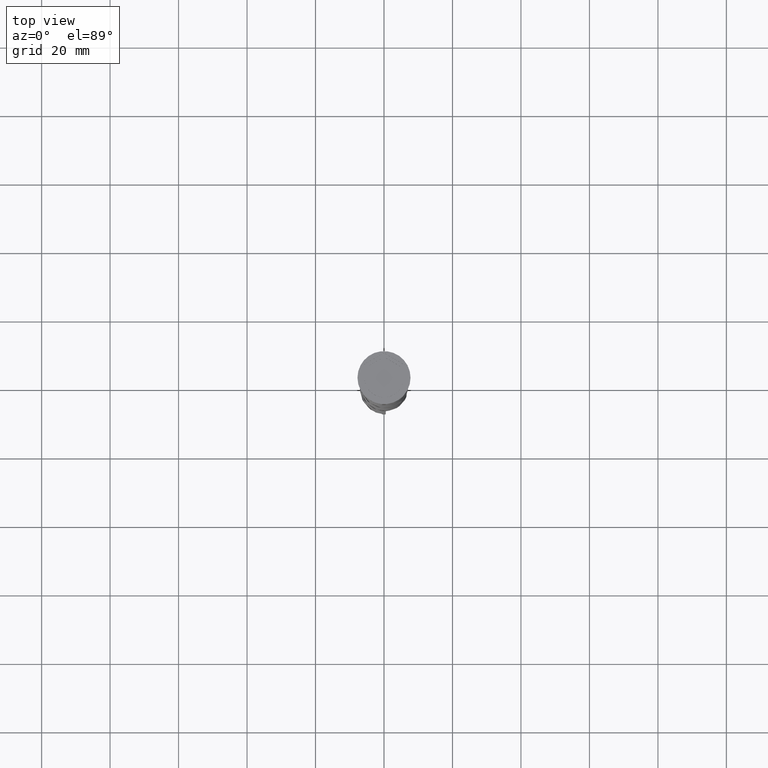
[diagram: clean part render]
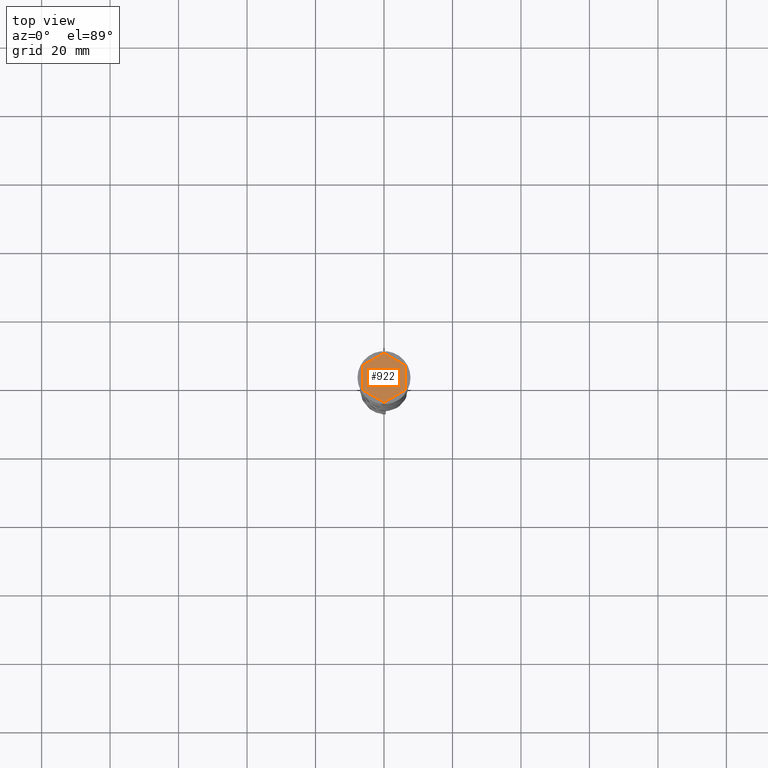
[diagram: same view with one face highlighted and labeled with its STEP entity id]
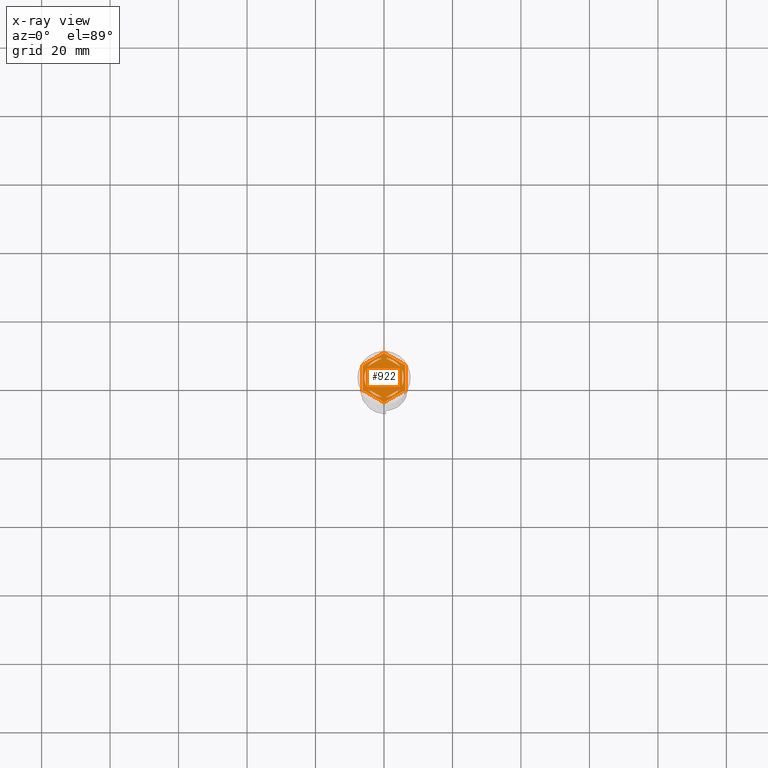
[diagram: x-ray of the same camera — body ghosted, the highlighted face saturated]
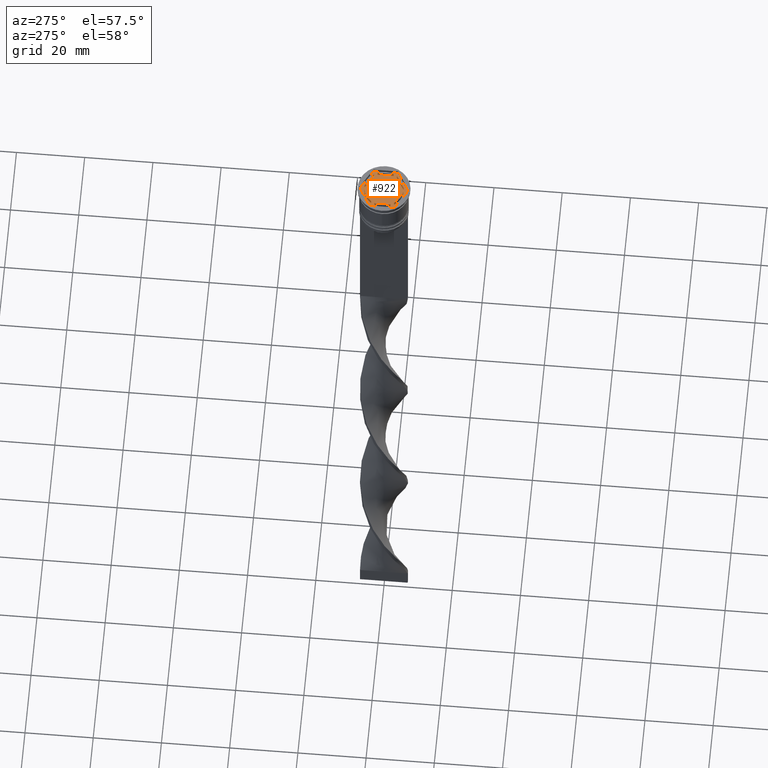
[diagram: same view with one face highlighted and labeled with its STEP entity id]
A machine part, top view. The second image highlights one B-rep face of the part: STEP entity #922.
The next image is the same camera in x-ray: the body ghosted, the highlighted face saturated — about 0% of this face is hidden behind the body in this view.
A second angle (auxiliary view) of the same face is appended — the face is thin or edge-on in the first view.
In plain terms, the highlighted planar face has unit normal (0, 0, 1).
Its self-contained STEP definition (entity closure, byte-faithful):
#20 = CARTESIAN_POINT ( 'NONE',  ( 0.5939903988410126789, 5.719237309824160675, -1.000000000000000888 ) ) ;
#25 = EDGE_CURVE ( 'NONE', #1336, #2968, #3800, .T. ) ;
#69 = CIRCLE ( 'NONE', #2590, 5.750000000000000000 ) ;
#78 = EDGE_CURVE ( 'NONE', #2641, #1229, #1830, .T. ) ;
#111 = CARTESIAN_POINT ( 'NONE',  ( -6.249999999999999112, -3.608439182435161374, -1.000000000000000000 ) ) ;
#112 = ORIENTED_EDGE ( 'NONE', *, *, #3701, .F. ) ;
#127 = EDGE_LOOP ( 'NONE', ( #1533, #2231 ) ) ;
#134 = EDGE_LOOP ( 'NONE', ( #112, #1873 ) ) ;
#147 = EDGE_CURVE ( 'NONE', #1727, #3018, #176, .T. ) ;
#162 = CARTESIAN_POINT ( 'NONE',  ( 4.656009601158988431, 3.374029429912448919, -1.000000000000000888 ) ) ;
#171 = EDGE_CURVE ( 'NONE', #980, #2386, #1348, .T. ) ;
#175 = VERTEX_POINT ( 'NONE', #2191 ) ;
#176 = LINE ( 'NONE', #1652, #674 ) ;
#192 = DIRECTION ( 'NONE',  ( 0.000000000000000000, 1.000000000000000000, 0.000000000000000000 ) ) ;
#293 = ORIENTED_EDGE ( 'NONE', *, *, #333, .F. ) ;
#301 = DIRECTION ( 'NONE',  ( 0.8660254037844385966, -0.4999999999999998890, 0.000000000000000000 ) ) ;
#303 = VERTEX_POINT ( 'NONE', #1387 ) ;
#313 = CARTESIAN_POINT ( 'NONE',  ( 0.000000000000000000, 0.000000000000000000, -1.000000000000000000 ) ) ;
#333 = EDGE_CURVE ( 'NONE', #3486, #3435, #2598, .T. ) ;
#376 = ORIENTED_EDGE ( 'NONE', *, *, #3014, .F. ) ;
#450 = CARTESIAN_POINT ( 'NONE',  ( -0.5939903988410105695, 5.719237309824159787, -1.000000000000000888 ) ) ;
#465 = DIRECTION ( 'NONE',  ( 0.8660254037844387076, -0.4999999999999998335, 0.000000000000000000 ) ) ;
#468 = DIRECTION ( 'NONE',  ( 1.000000000000000000, 0.000000000000000000, 0.000000000000000000 ) ) ;
#471 = EDGE_LOOP ( 'NONE', ( #2202, #3445 ) ) ;
#483 = CARTESIAN_POINT ( 'NONE',  ( 5.249999999999997335, 3.031088913245537864, -1.000000000000000888 ) ) ;
#522 = ORIENTED_EDGE ( 'NONE', *, *, #25, .F. ) ;
#545 = CARTESIAN_POINT ( 'NONE',  ( 6.249999999999998224, -3.608439182435161374, -1.000000000000000000 ) ) ;
#589 = EDGE_CURVE ( 'NONE', #175, #3705, #1475, .T. ) ;
#600 = CARTESIAN_POINT ( 'NONE',  ( -6.249999999999999112, 3.608439182435158710, -1.000000000000000000 ) ) ;
#608 = CARTESIAN_POINT ( 'NONE',  ( -6.249999999999999112, -3.608439182435161374, -1.000000000000000000 ) ) ;
#624 = CARTESIAN_POINT ( 'NONE',  ( 6.249999999999998224, -3.608439182435161374, -1.000000000000000000 ) ) ;
#639 = EDGE_CURVE ( 'NONE', #1229, #2641, #2270, .T. ) ;
#661 = DIRECTION ( 'NONE',  ( 1.000000000000000000, 0.000000000000000000, 0.000000000000000000 ) ) ;
#674 = VECTOR ( 'NONE', #776, 1000.000000000000000 ) ;
#706 = DIRECTION ( 'NONE',  ( 0.000000000000000000, 0.000000000000000000, 1.000000000000000000 ) ) ;
#730 = AXIS2_PLACEMENT_3D ( 'NONE', #313, #2075, #661 ) ;
#739 = VECTOR ( 'NONE', #2910, 1000.000000000000000 ) ;
#776 = DIRECTION ( 'NONE',  ( -0.8660254037844388186, 0.4999999999999997224, 0.000000000000000000 ) ) ;
#799 = VECTOR ( 'NONE', #3553, 1000.000000000000000 ) ;
#802 = FACE_BOUND ( 'NONE', #127, .T. ) ;
#806 = VECTOR ( 'NONE', #1079, 1000.000000000000114 ) ;
#810 = EDGE_CURVE ( 'NONE', #303, #3382, #861, .T. ) ;
#838 = CARTESIAN_POINT ( 'NONE',  ( 0.000000000000000000, 0.000000000000000000, -1.000000000000000000 ) ) ;
#840 = FACE_BOUND ( 'NONE', #134, .T. ) ;
#854 = LINE ( 'NONE', #3777, #2832 ) ;
#861 = CIRCLE ( 'NONE', #2077, 5.750000000000000000 ) ;
#891 = LINE ( 'NONE', #624, #739 ) ;
#916 = DIRECTION ( 'NONE',  ( 1.000000000000000000, 0.000000000000000000, 0.000000000000000000 ) ) ;
#922 = ADVANCED_FACE ( 'NONE', ( #802, #1091, #840, #2549, #2314, #2257, #2004 ), #3182, .T. ) ;
#980 = VERTEX_POINT ( 'NONE', #2605 ) ;
#1002 = EDGE_LOOP ( 'NONE', ( #2669, #376, #1329 ) ) ;
#1066 = EDGE_CURVE ( 'NONE', #3705, #1727, #891, .T. ) ;
#1076 = CARTESIAN_POINT ( 'NONE',  ( -0.5939903988410105695, -5.719237309824160675, -1.000000000000000888 ) ) ;
#1079 = DIRECTION ( 'NONE',  ( -0.8660254037844387076, -0.4999999999999997224, 0.000000000000000000 ) ) ;
#1091 = FACE_BOUND ( 'NONE', #3513, .T. ) ;
#1113 = CIRCLE ( 'NONE', #2216, 5.750000000000000000 ) ;
#1125 = VECTOR ( 'NONE', #301, 1000.000000000000227 ) ;
#1133 = ORIENTED_EDGE ( 'NONE', *, *, #2933, .T. ) ;
#1211 = DIRECTION ( 'NONE',  ( 0.000000000000000000, 0.000000000000000000, 1.000000000000000000 ) ) ;
#1229 = VERTEX_POINT ( 'NONE', #162 ) ;
#1267 = CARTESIAN_POINT ( 'NONE',  ( -5.249999999999999112, -2.345207879911715310, -1.000000000000000888 ) ) ;
#1312 = DIRECTION ( 'NONE',  ( 0.8660254037844387076, 0.4999999999999999445, -0.000000000000000000 ) ) ;
#1329 = ORIENTED_EDGE ( 'NONE', *, *, #810, .F. ) ;
#1336 = VERTEX_POINT ( 'NONE', #3062 ) ;
#1345 = CARTESIAN_POINT ( 'NONE',  ( 0.000000000000000000, 0.000000000000000000, -1.000000000000000000 ) ) ;
#1348 = LINE ( 'NONE', #2519, #3681 ) ;
#1368 = CARTESIAN_POINT ( 'NONE',  ( 5.249999999999997335, 2.345207879911718862, -1.000000000000000888 ) ) ;
#1382 = VERTEX_POINT ( 'NONE', #1620 ) ;
#1387 = CARTESIAN_POINT ( 'NONE',  ( -5.750000000000000000, 0.000000000000000000, -1.000000000000000000 ) ) ;
#1424 = ORIENTED_EDGE ( 'NONE', *, *, #2939, .F. ) ;
#1462 = DIRECTION ( 'NONE',  ( 0.000000000000000000, 0.000000000000000000, 1.000000000000000000 ) ) ;
#1475 = LINE ( 'NONE', #2666, #799 ) ;
#1533 = ORIENTED_EDGE ( 'NONE', *, *, #639, .F. ) ;
#1596 = CARTESIAN_POINT ( 'NONE',  ( 0.000000000000000000, 0.000000000000000000, -1.000000000000000000 ) ) ;
#1610 = CARTESIAN_POINT ( 'NONE',  ( -4.656009601158991096, -3.374029429912444034, -1.000000000000000888 ) ) ;
#1620 = CARTESIAN_POINT ( 'NONE',  ( 0.5939903988410074609, -5.719237309824160675, -1.000000000000000888 ) ) ;
#1650 = LINE ( 'NONE', #2823, #2092 ) ;
#1651 = VERTEX_POINT ( 'NONE', #3338 ) ;
#1652 = CARTESIAN_POINT ( 'NONE',  ( 6.250000000000000000, 3.608439182435161374, -1.000000000000000000 ) ) ;
#1687 = DIRECTION ( 'NONE',  ( 1.000000000000000000, 0.000000000000000000, 0.000000000000000000 ) ) ;
#1727 = VERTEX_POINT ( 'NONE', #2496 ) ;
#1739 = EDGE_LOOP ( 'NONE', ( #1424, #293 ) ) ;
#1742 = EDGE_CURVE ( 'NONE', #1651, #1382, #2264, .T. ) ;
#1786 = AXIS2_PLACEMENT_3D ( 'NONE', #1345, #1978, #1687 ) ;
#1830 = LINE ( 'NONE', #483, #2014 ) ;
#1863 = EDGE_CURVE ( 'NONE', #2386, #980, #2766, .T. ) ;
#1873 = ORIENTED_EDGE ( 'NONE', *, *, #1742, .F. ) ;
#1884 = ORIENTED_EDGE ( 'NONE', *, *, #3300, .T. ) ;
#1961 = VECTOR ( 'NONE', #1996, 1000.000000000000114 ) ;
#1970 = DIRECTION ( 'NONE',  ( 1.000000000000000000, 0.000000000000000000, -0.000000000000000000 ) ) ;
#1978 = DIRECTION ( 'NONE',  ( 0.000000000000000000, 0.000000000000000000, 1.000000000000000000 ) ) ;
#1991 = VERTEX_POINT ( 'NONE', #3784 ) ;
#1996 = DIRECTION ( 'NONE',  ( -0.8660254037844384856, 0.5000000000000002220, 0.000000000000000000 ) ) ;
#2004 = FACE_OUTER_BOUND ( 'NONE', #3172, .T. ) ;
#2014 = VECTOR ( 'NONE', #465, 1000.000000000000114 ) ;
#2048 = CARTESIAN_POINT ( 'NONE',  ( 0.000000000000000000, 0.000000000000000000, -1.000000000000000000 ) ) ;
#2051 = CARTESIAN_POINT ( 'NONE',  ( -5.249999999999999112, -3.031088913245534311, -1.000000000000000888 ) ) ;
#2075 = DIRECTION ( 'NONE',  ( 0.000000000000000000, 0.000000000000000000, 1.000000000000000000 ) ) ;
#2077 = AXIS2_PLACEMENT_3D ( 'NONE', #2741, #706, #3684 ) ;
#2092 = VECTOR ( 'NONE', #192, 1000.000000000000000 ) ;
#2191 = CARTESIAN_POINT ( 'NONE',  ( 8.729740977282959667E-16, -7.216878364870321860, -1.000000000000000000 ) ) ;
#2202 = ORIENTED_EDGE ( 'NONE', *, *, #1863, .F. ) ;
#2216 = AXIS2_PLACEMENT_3D ( 'NONE', #838, #1462, #3504 ) ;
#2231 = ORIENTED_EDGE ( 'NONE', *, *, #78, .F. ) ;
#2257 = FACE_BOUND ( 'NONE', #471, .T. ) ;
#2264 = LINE ( 'NONE', #3443, #806 ) ;
#2266 = AXIS2_PLACEMENT_3D ( 'NONE', #3247, #1211, #3611 ) ;
#2270 = CIRCLE ( 'NONE', #2266, 5.750000000000000000 ) ;
#2277 = VERTEX_POINT ( 'NONE', #600 ) ;
#2304 = LINE ( 'NONE', #3171, #2954 ) ;
#2314 = FACE_BOUND ( 'NONE', #1002, .T. ) ;
#2386 = VERTEX_POINT ( 'NONE', #450 ) ;
#2388 = AXIS2_PLACEMENT_3D ( 'NONE', #3436, #2872, #1970 ) ;
#2444 = EDGE_CURVE ( 'NONE', #1991, #303, #69, .T. ) ;
#2454 = DIRECTION ( 'NONE',  ( -0.8660254037844385966, -0.5000000000000001110, 0.000000000000000000 ) ) ;
#2496 = CARTESIAN_POINT ( 'NONE',  ( 6.250000000000000000, 3.608439182435161374, -1.000000000000000000 ) ) ;
#2519 = CARTESIAN_POINT ( 'NONE',  ( 8.673617379884035472E-16, 6.062177826491070398, -1.000000000000000888 ) ) ;
#2549 = FACE_BOUND ( 'NONE', #1739, .T. ) ;
#2590 = AXIS2_PLACEMENT_3D ( 'NONE', #1596, #2774, #468 ) ;
#2598 = LINE ( 'NONE', #2051, #1961 ) ;
#2605 = CARTESIAN_POINT ( 'NONE',  ( -4.656009601158989319, 3.374029429912446698, -1.000000000000000888 ) ) ;
#2641 = VERTEX_POINT ( 'NONE', #20 ) ;
#2666 = CARTESIAN_POINT ( 'NONE',  ( 8.729740977282959667E-16, -7.216878364870321860, -1.000000000000000000 ) ) ;
#2669 = ORIENTED_EDGE ( 'NONE', *, *, #2444, .F. ) ;
#2698 = ORIENTED_EDGE ( 'NONE', *, *, #3671, .F. ) ;
#2741 = CARTESIAN_POINT ( 'NONE',  ( 0.000000000000000000, 0.000000000000000000, -1.000000000000000000 ) ) ;
#2766 = CIRCLE ( 'NONE', #3256, 5.750000000000000000 ) ;
#2774 = DIRECTION ( 'NONE',  ( 0.000000000000000000, 0.000000000000000000, 1.000000000000000000 ) ) ;
#2784 = CARTESIAN_POINT ( 'NONE',  ( 0.000000000000000000, 7.216878364870320084, -1.000000000000000000 ) ) ;
#2823 = CARTESIAN_POINT ( 'NONE',  ( -5.249999999999999112, 3.031088913245535199, -1.000000000000000888 ) ) ;
#2832 = VECTOR ( 'NONE', #3759, 1000.000000000000000 ) ;
#2872 = DIRECTION ( 'NONE',  ( 0.000000000000000000, 0.000000000000000000, 1.000000000000000000 ) ) ;
#2910 = DIRECTION ( 'NONE',  ( 2.403703357979454647E-16, 1.000000000000000000, 0.000000000000000000 ) ) ;
#2932 = LINE ( 'NONE', #608, #1125 ) ;
#2933 = EDGE_CURVE ( 'NONE', #2277, #3286, #2304, .T. ) ;
#2939 = EDGE_CURVE ( 'NONE', #3435, #3486, #3270, .T. ) ;
#2954 = VECTOR ( 'NONE', #3461, 1000.000000000000000 ) ;
#2968 = VERTEX_POINT ( 'NONE', #1368 ) ;
#2996 = ORIENTED_EDGE ( 'NONE', *, *, #1066, .T. ) ;
#3014 = EDGE_CURVE ( 'NONE', #3382, #1991, #1650, .T. ) ;
#3018 = VERTEX_POINT ( 'NONE', #3156 ) ;
#3062 = CARTESIAN_POINT ( 'NONE',  ( 5.249999999999997335, -2.345207879911720639, -1.000000000000000888 ) ) ;
#3090 = ORIENTED_EDGE ( 'NONE', *, *, #3223, .T. ) ;
#3156 = CARTESIAN_POINT ( 'NONE',  ( 0.000000000000000000, 7.216878364870320084, -1.000000000000000000 ) ) ;
#3171 = CARTESIAN_POINT ( 'NONE',  ( -6.249999999999999112, 3.608439182435158710, -1.000000000000000000 ) ) ;
#3172 = EDGE_LOOP ( 'NONE', ( #3454, #1884, #1133, #3090, #3743, #2996 ) ) ;
#3182 = PLANE ( 'NONE',  #2388 ) ;
#3223 = EDGE_CURVE ( 'NONE', #3286, #175, #2932, .T. ) ;
#3230 = DIRECTION ( 'NONE',  ( 0.000000000000000000, 0.000000000000000000, 1.000000000000000000 ) ) ;
#3247 = CARTESIAN_POINT ( 'NONE',  ( 0.000000000000000000, 0.000000000000000000, -1.000000000000000000 ) ) ;
#3256 = AXIS2_PLACEMENT_3D ( 'NONE', #2048, #3230, #916 ) ;
#3270 = CIRCLE ( 'NONE', #1786, 5.750000000000000000 ) ;
#3286 = VERTEX_POINT ( 'NONE', #111 ) ;
#3300 = EDGE_CURVE ( 'NONE', #3018, #2277, #3345, .T. ) ;
#3338 = CARTESIAN_POINT ( 'NONE',  ( 4.656009601158990208, -3.374029429912445810, -1.000000000000000888 ) ) ;
#3345 = LINE ( 'NONE', #2784, #3394 ) ;
#3382 = VERTEX_POINT ( 'NONE', #1267 ) ;
#3394 = VECTOR ( 'NONE', #2454, 1000.000000000000114 ) ;
#3435 = VERTEX_POINT ( 'NONE', #1610 ) ;
#3436 = CARTESIAN_POINT ( 'NONE',  ( 0.000000000000000000, 0.000000000000000000, -1.000000000000000000 ) ) ;
#3443 = CARTESIAN_POINT ( 'NONE',  ( -1.734723475976807094E-15, -6.062177826491069510, -1.000000000000000888 ) ) ;
#3445 = ORIENTED_EDGE ( 'NONE', *, *, #171, .F. ) ;
#3454 = ORIENTED_EDGE ( 'NONE', *, *, #147, .T. ) ;
#3461 = DIRECTION ( 'NONE',  ( 0.000000000000000000, -1.000000000000000000, 0.000000000000000000 ) ) ;
#3486 = VERTEX_POINT ( 'NONE', #1076 ) ;
#3504 = DIRECTION ( 'NONE',  ( 1.000000000000000000, 0.000000000000000000, 0.000000000000000000 ) ) ;
#3513 = EDGE_LOOP ( 'NONE', ( #522, #2698 ) ) ;
#3553 = DIRECTION ( 'NONE',  ( 0.8660254037844385966, 0.5000000000000001110, 0.000000000000000000 ) ) ;
#3611 = DIRECTION ( 'NONE',  ( 1.000000000000000000, 0.000000000000000000, 0.000000000000000000 ) ) ;
#3671 = EDGE_CURVE ( 'NONE', #2968, #1336, #854, .T. ) ;
#3681 = VECTOR ( 'NONE', #1312, 1000.000000000000000 ) ;
#3684 = DIRECTION ( 'NONE',  ( 1.000000000000000000, 0.000000000000000000, 0.000000000000000000 ) ) ;
#3701 = EDGE_CURVE ( 'NONE', #1382, #1651, #1113, .T. ) ;
#3705 = VERTEX_POINT ( 'NONE', #545 ) ;
#3743 = ORIENTED_EDGE ( 'NONE', *, *, #589, .T. ) ;
#3759 = DIRECTION ( 'NONE',  ( -1.430775808321103440E-16, -1.000000000000000000, 0.000000000000000000 ) ) ;
#3777 = CARTESIAN_POINT ( 'NONE',  ( 5.249999999999996447, -3.031088913245536975, -1.000000000000000888 ) ) ;
#3784 = CARTESIAN_POINT ( 'NONE',  ( -5.249999999999999112, 2.345207879911715310, -1.000000000000000888 ) ) ;
#3800 = CIRCLE ( 'NONE', #730, 5.750000000000000000 ) ;